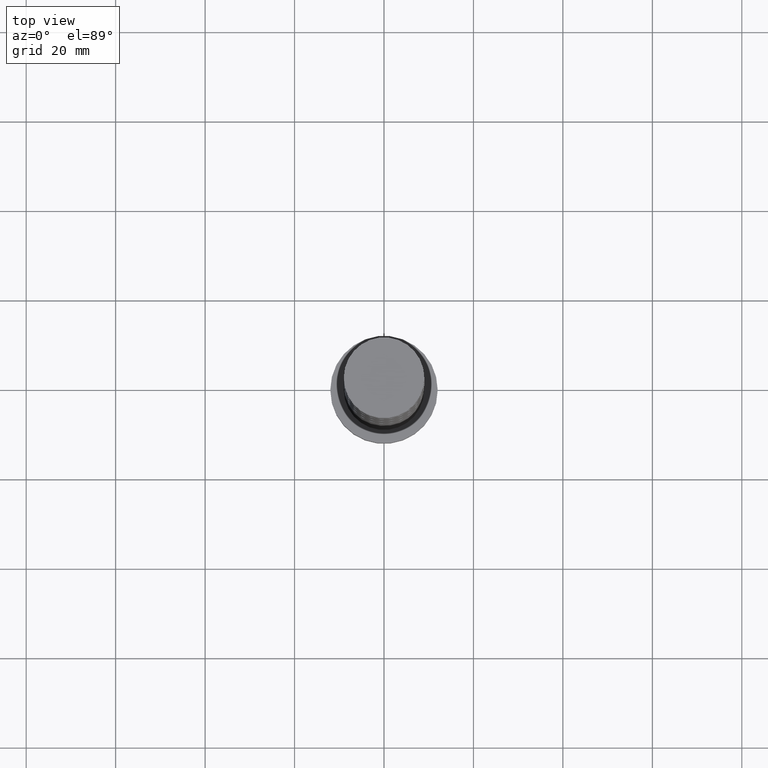
[diagram: clean part render]
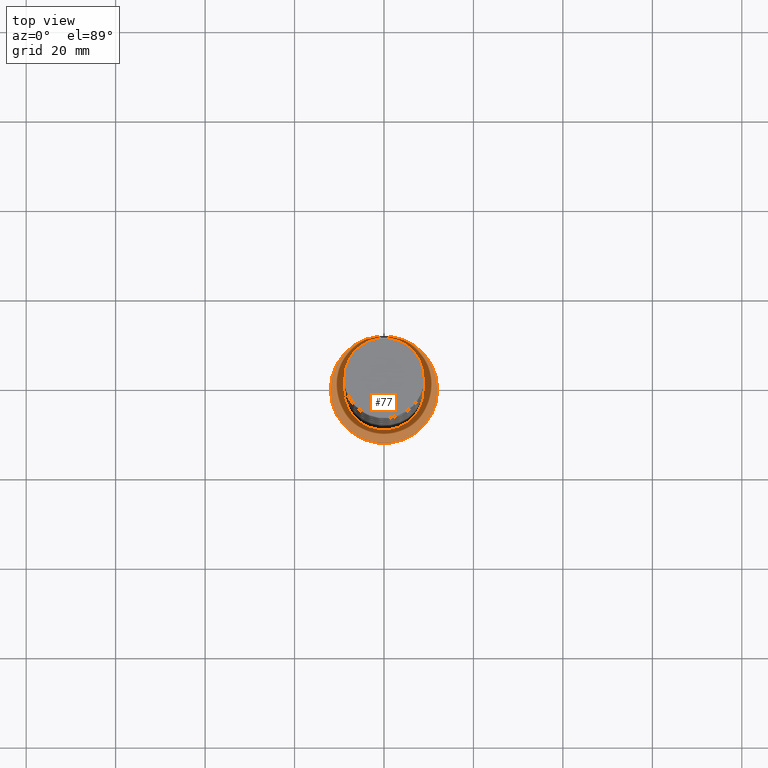
[diagram: same view with one face highlighted and labeled with its STEP entity id]
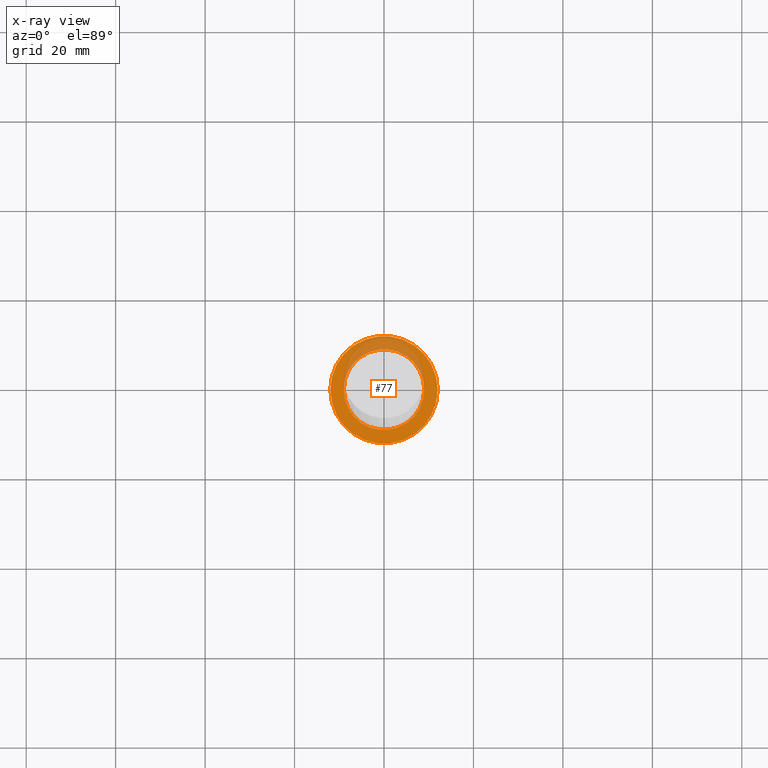
[diagram: x-ray of the same camera — body ghosted, the highlighted face saturated]
A machine part, top view. The second image highlights one B-rep face of the part: STEP entity #77.
The next image is the same camera in x-ray: the body ghosted, the highlighted face saturated — about 25% of this face is hidden behind the body in this view.
In plain terms, the highlighted planar face has unit normal (0, 0, 1).
Its self-contained STEP definition (entity closure, byte-faithful):
#22 = VERTEX_POINT ( 'NONE', #553 ) ;
#77 = ADVANCED_FACE ( 'NONE', ( #1340, #186 ), #1576, .T. ) ;
#103 = CIRCLE ( 'NONE', #641, 9.000000000000001776 ) ;
#108 = CARTESIAN_POINT ( 'NONE',  ( 0.000000000000000000, 0.000000000000000000, 7.000000000000000000 ) ) ;
#186 = FACE_OUTER_BOUND ( 'NONE', #658, .T. ) ;
#235 = CIRCLE ( 'NONE', #797, 12.00000000000000178 ) ;
#264 = DIRECTION ( 'NONE',  ( 0.000000000000000000, 0.000000000000000000, 1.000000000000000000 ) ) ;
#288 = AXIS2_PLACEMENT_3D ( 'NONE', #1472, #569, #816 ) ;
#421 = DIRECTION ( 'NONE',  ( 0.000000000000000000, 0.000000000000000000, 1.000000000000000000 ) ) ;
#492 = DIRECTION ( 'NONE',  ( 1.000000000000000000, 0.000000000000000000, 0.000000000000000000 ) ) ;
#503 = CARTESIAN_POINT ( 'NONE',  ( -12.00000000000000178, 0.000000000000000000, 7.000000000000000000 ) ) ;
#530 = CARTESIAN_POINT ( 'NONE',  ( -9.000000000000001776, 0.000000000000000000, 7.000000000000000000 ) ) ;
#553 = CARTESIAN_POINT ( 'NONE',  ( 12.00000000000000178, 1.469576158976824144E-15, 7.000000000000000000 ) ) ;
#569 = DIRECTION ( 'NONE',  ( 0.000000000000000000, 0.000000000000000000, 1.000000000000000000 ) ) ;
#591 = DIRECTION ( 'NONE',  ( 1.000000000000000000, 0.000000000000000000, -0.000000000000000000 ) ) ;
#641 = AXIS2_PLACEMENT_3D ( 'NONE', #108, #1640, #492 ) ;
#656 = EDGE_CURVE ( 'NONE', #1539, #22, #235, .T. ) ;
#658 = EDGE_LOOP ( 'NONE', ( #740, #1283 ) ) ;
#740 = ORIENTED_EDGE ( 'NONE', *, *, #656, .T. ) ;
#797 = AXIS2_PLACEMENT_3D ( 'NONE', #1148, #1282, #916 ) ;
#816 = DIRECTION ( 'NONE',  ( 1.000000000000000000, 0.000000000000000000, 0.000000000000000000 ) ) ;
#916 = DIRECTION ( 'NONE',  ( 1.000000000000000000, 0.000000000000000000, 0.000000000000000000 ) ) ;
#994 = VERTEX_POINT ( 'NONE', #530 ) ;
#1036 = CIRCLE ( 'NONE', #1097, 9.000000000000001776 ) ;
#1095 = AXIS2_PLACEMENT_3D ( 'NONE', #1568, #421, #591 ) ;
#1097 = AXIS2_PLACEMENT_3D ( 'NONE', #1548, #264, #1414 ) ;
#1148 = CARTESIAN_POINT ( 'NONE',  ( 0.000000000000000000, 0.000000000000000000, 7.000000000000000000 ) ) ;
#1172 = CIRCLE ( 'NONE', #288, 12.00000000000000178 ) ;
#1181 = EDGE_CURVE ( 'NONE', #22, #1539, #1172, .T. ) ;
#1276 = ORIENTED_EDGE ( 'NONE', *, *, #1535, .F. ) ;
#1282 = DIRECTION ( 'NONE',  ( 0.000000000000000000, 0.000000000000000000, 1.000000000000000000 ) ) ;
#1283 = ORIENTED_EDGE ( 'NONE', *, *, #1181, .T. ) ;
#1340 = FACE_BOUND ( 'NONE', #1502, .T. ) ;
#1377 = VERTEX_POINT ( 'NONE', #1631 ) ;
#1414 = DIRECTION ( 'NONE',  ( 1.000000000000000000, 0.000000000000000000, 0.000000000000000000 ) ) ;
#1418 = EDGE_CURVE ( 'NONE', #994, #1377, #103, .T. ) ;
#1472 = CARTESIAN_POINT ( 'NONE',  ( 0.000000000000000000, 0.000000000000000000, 7.000000000000000000 ) ) ;
#1502 = EDGE_LOOP ( 'NONE', ( #1661, #1276 ) ) ;
#1535 = EDGE_CURVE ( 'NONE', #1377, #994, #1036, .T. ) ;
#1539 = VERTEX_POINT ( 'NONE', #503 ) ;
#1548 = CARTESIAN_POINT ( 'NONE',  ( 0.000000000000000000, 0.000000000000000000, 7.000000000000000000 ) ) ;
#1568 = CARTESIAN_POINT ( 'NONE',  ( 0.000000000000000000, 0.000000000000000000, 7.000000000000000000 ) ) ;
#1576 = PLANE ( 'NONE',  #1095 ) ;
#1631 = CARTESIAN_POINT ( 'NONE',  ( 9.000000000000001776, 1.102182119232617911E-15, 7.000000000000000000 ) ) ;
#1640 = DIRECTION ( 'NONE',  ( 0.000000000000000000, 0.000000000000000000, 1.000000000000000000 ) ) ;
#1661 = ORIENTED_EDGE ( 'NONE', *, *, #1418, .F. ) ;